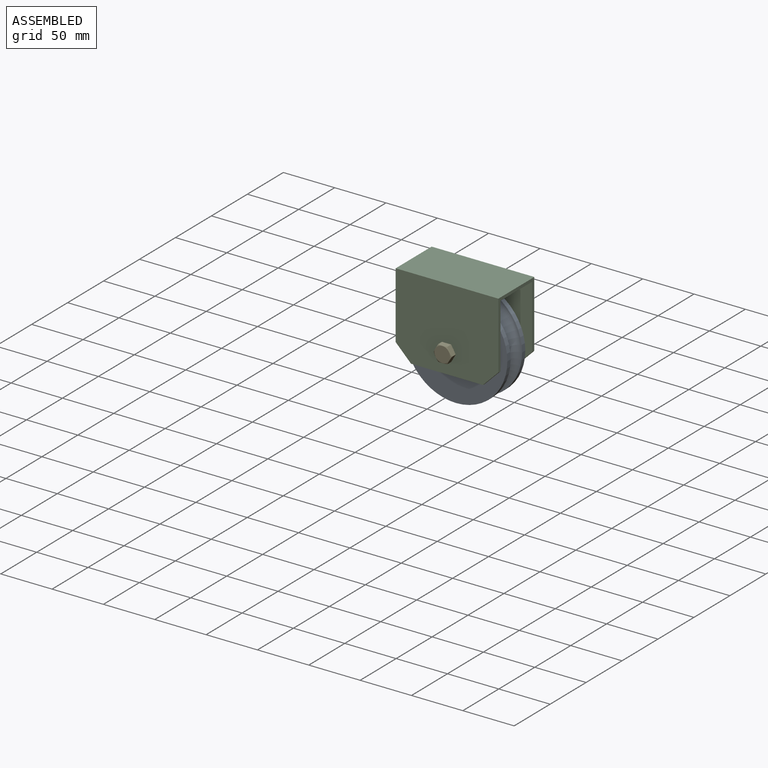
[diagram: assembled view]
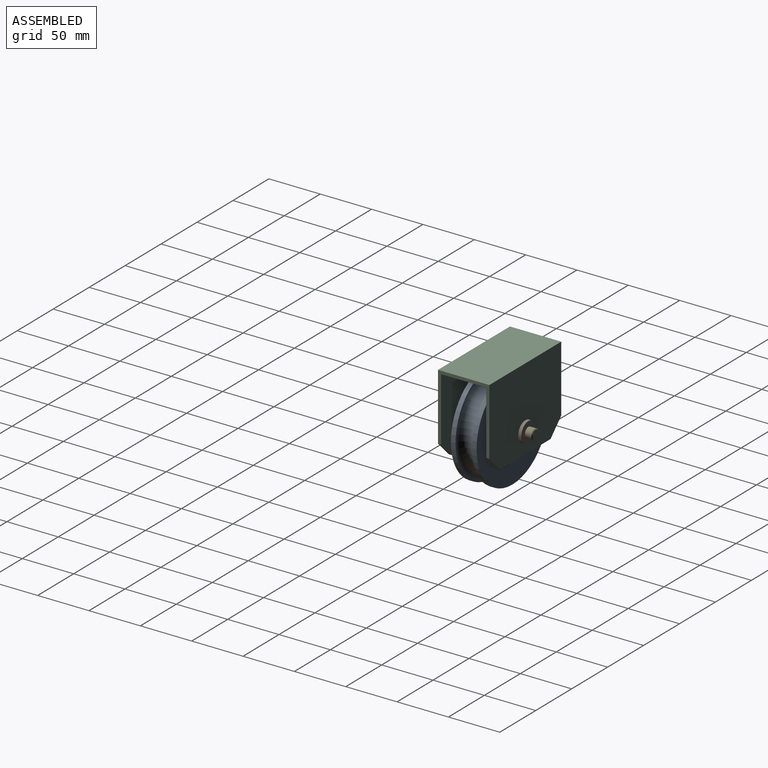
[diagram: assembled view, second angle]
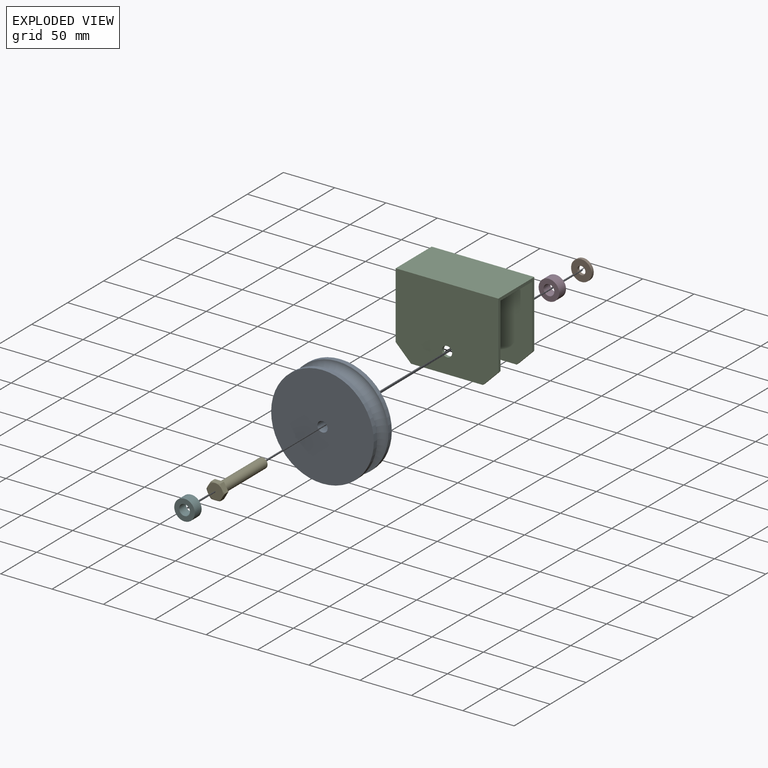
[diagram: exploded view]
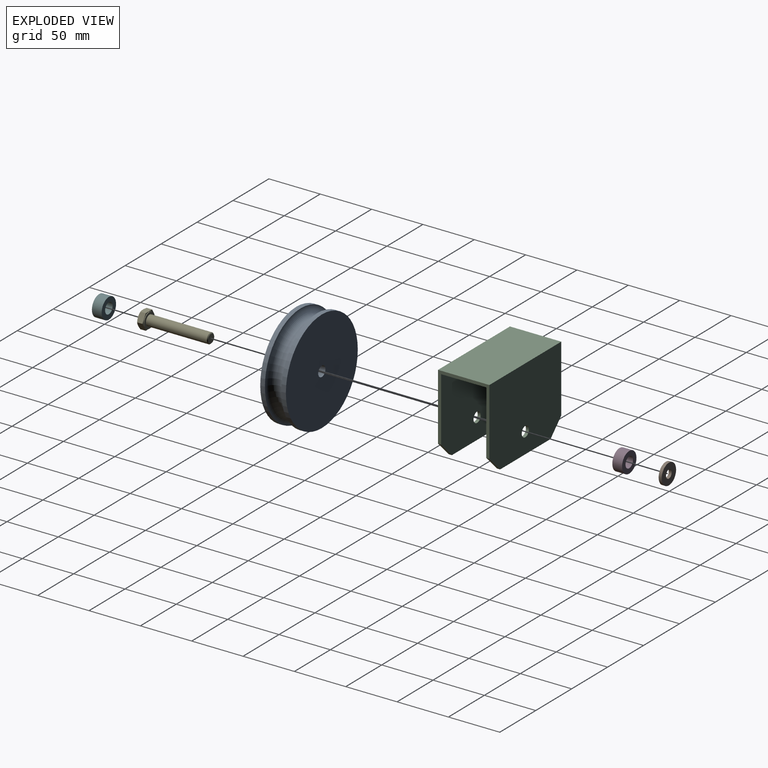
[diagram: exploded view, second angle]
ASSEMBLY  parts=6 mates=5
PART A: 6 faces, bbox 120.5x25x120.5 mm
  f0: plane 100x100mm, normal (0,-1,0), area 7775.4mm2, adj f1,f5
  f1: cylinder r=5mm len=25mm, axis (0,-1,0), area 785.4mm2, adj f0,f2
  f2: plane 100x100mm, normal (0,1,0), area 7775.4mm2, adj f1,f3
  f3: cylinder r=50mm len=100mm, axis (0,-1,0), area 1413.7mm2, adj f2,f4
  f4: torus R=50mm, axis (0,-1,0), area 7091.4mm2, adj f3,f5
  f5: cylinder r=50mm len=100mm, axis (0,-1,0), area 1413.7mm2, adj f0,f4
PART B: 4 faces, bbox 20x3x20 mm
  f0: cylinder r=4mm len=8mm, axis (0,1,0), area 75.4mm2, adj f2,f3
  f1: cylinder r=10mm len=20mm, axis (0,1,0), area 188.5mm2, adj f2,f3
  f2: plane 20x20mm, normal (0,-1,0), area 263.9mm2, adj f0,f1
  f3: plane 20x20mm, normal (0,1,0), area 263.9mm2, adj f0,f1
PART C: 16 faces, bbox 100x50x80 mm
  f0: plane 70x3mm, normal (0,0,-1), area 210mm2, adj f7,f9,f11,f15
  f1: plane 65x50mm, normal (-1,0,0), area 522mm2, adj f2,f6,f7,f11,f12,f13,f14,f15
  f2: plane 15x15mm, normal (-0.71,0,-0.71), area 63.6mm2, adj f1,f8,f12,f13
  f3: plane 15x15mm, normal (0.71,0,-0.71), area 63.6mm2, adj f4,f8,f12,f13
  f4: plane 65x50mm, normal (1,0,0), area 522mm2, adj f3,f6,f9,f11,f12,f13,f14,f15
  f5: cylinder r=5mm len=10mm, axis (0,1,0), area 94.2mm2, adj f12,f13
  f6: plane 100x50mm, normal (0,0,1), area 5000mm2, adj f1,f4,f11,f12
  f7: plane 15x15mm, normal (-0.71,0,-0.71), area 63.6mm2, adj f0,f1,f11,f15
  f8: plane 70x3mm, normal (0,0,-1), area 210mm2, adj f2,f3,f12,f13
  f9: plane 15x15mm, normal (0.71,0,-0.71), area 63.6mm2, adj f0,f4,f11,f15
  f10: cylinder r=5mm len=10mm, axis (0,1,0), area 94.2mm2, adj f11,f15
  f11: plane 100x80mm, normal (0,-1,0), area 7696.5mm2, adj f0,f1,f4,f6,f7,f9,f10
  f12: plane 100x80mm, normal (0,1,0), area 7696.5mm2, adj f1,f2,f3,f4,f5,f6,f8
  f13: plane 100x77mm, normal (0,-1,0), area 7396.5mm2, adj f1,f2,f3,f4,f5,f8,f14
  f14: plane 100x44mm, normal (0,0,-1), area 4400mm2, adj f1,f4,f13,f15
  f15: plane 100x77mm, normal (0,1,0), area 7396.5mm2, adj f0,f1,f4,f7,f9,f10,f14
PART D: 4 faces, bbox 20x9.5x20 mm
  f0: cylinder r=5.25mm len=10.5mm, axis (0,1,0), area 313.4mm2, adj f2,f3
  f1: cylinder r=10mm len=20mm, axis (0,1,0), area 596.9mm2, adj f2,f3
  f2: plane 20x20mm, normal (0,-1,0), area 227.6mm2, adj f0,f1
  f3: plane 20x20mm, normal (0,1,0), area 227.6mm2, adj f0,f1
PART E: 14 faces, bbox 17.8x66.6x17.8 mm
  f0: plane 8.89x5.91mm, normal (0,0,1), area 50.4mm2, adj f1,f5,f6,f9
  f1: plane 7.7x5.92mm, normal (0.87,0,0.5), area 50.4mm2, adj f0,f2,f6,f9
  f2: plane 7.7x5.92mm, normal (0.87,0,-0.5), area 50.4mm2, adj f1,f3,f6,f9
  f3: plane 8.89x5.91mm, normal (0,0,-1), area 50.4mm2, adj f2,f4,f6,f9
  f4: plane 7.7x5.92mm, normal (-0.87,0,-0.5), area 50.4mm2, adj f3,f5,f6,f9
  f5: plane 7.7x5.92mm, normal (-0.87,0,0.5), area 50.4mm2, adj f0,f4,f6,f9
  f6: plane 17.77x15.39mm, normal (0,1,0), area 37mm2, adj f0,f1,f2,f3,f4,f5,f7
  f7: cylinder r=7.32mm len=14.63mm, axis (0,1,0), area 27.6mm2, adj f6,f8
  f8: plane 14.63x14.63mm, normal (0,1,0), area 90.1mm2, adj f7,f11
  f9: cone r=7.58mm half-angle=60deg, axis (0,1,0), area 28.6mm2, adj f0,f1,f2,f3,f4,f5,f10
  f10: plane 15.15x15.15mm, normal (0,-1,0), area 180.3mm2, adj f9
  f11: cylinder r=4.98mm len=59.3mm, axis (0,-1,0), area 1857.1mm2, adj f8,f13
  f12: plane 8.57x8.57mm, normal (0,1,0), area 57.7mm2, adj f13
  f13: cone r=4.29mm half-angle=45deg, axis (0,-1,0), area 28.7mm2, adj f11,f12
PART F: same geometry as D
PLACE A t=(65.51,-19.28,-21.41)mm
PLACE B t=(65.51,8.72,-21.41)mm
PLACE C t=(15.51,-19.28,-41.41)mm
PLACE D t=(65.51,2.72,-21.41)mm
PLACE E t=(65.51,-50.86,-21.41)mm
PLACE F t=(65.51,-31.78,-21.41)mm
MATE fastened F.f1 <-> C.f5  axis (0,-1,0) through (65.51,-41.28,-21.41)mm
MATE fastened A.f1 <-> D.f1  axis (0,1,0) through (65.51,-6.78,-21.41)mm
MATE fastened E.f7 <-> C.f5  axis (0,-1,0) through (65.51,-44.28,-21.41)mm
MATE fastened C.f5 <-> B.f1  axis (0,1,0) through (65.51,5.72,-21.41)mm
MATE fastened A.f1 <-> F.f0  axis (0,-1,0) through (65.51,-31.78,-21.41)mm
